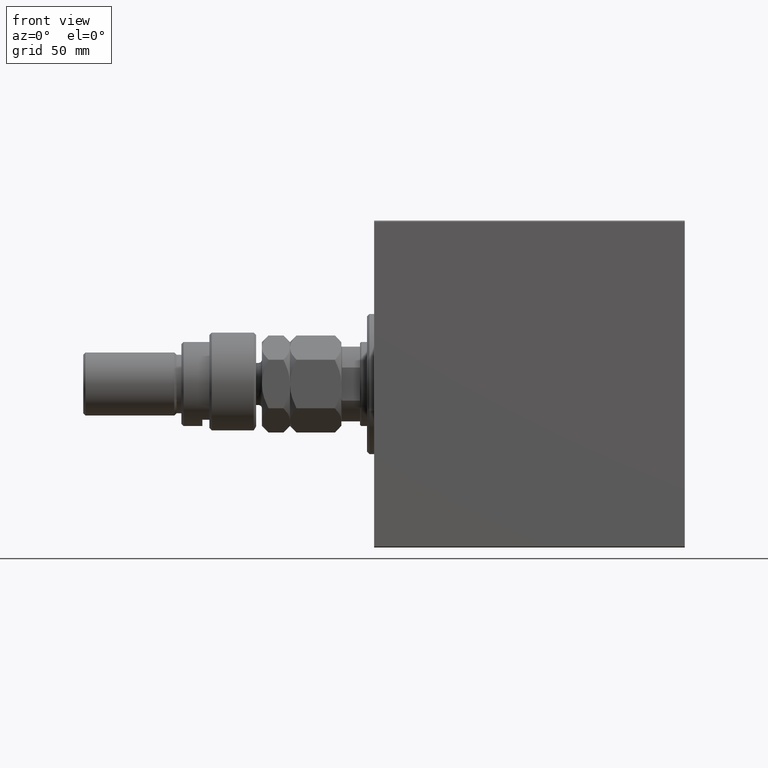
[diagram: clean part render]
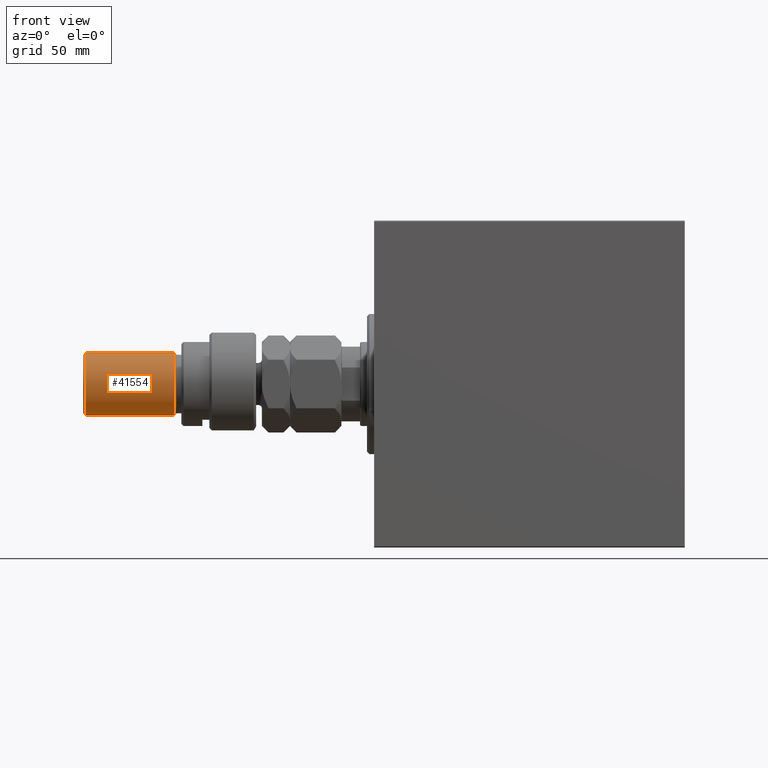
[diagram: same view with one face highlighted and labeled with its STEP entity id]
A machine part, front view. The second image highlights one B-rep face of the part: STEP entity #41554.
In plain terms, the highlighted cylindrical surface (edge-blend (fillet) strip) has radius 13.5 mm, axis along (1, -0, -0).
Its self-contained STEP definition (entity closure, byte-faithful):
#65 = CARTESIAN_POINT ( 'NONE',  ( -13.50000000000000000, 0.000000000000000000, 74.00000000000001421 ) ) ;
#109 = CARTESIAN_POINT ( 'NONE',  ( 13.50000000000000000, 1.653273178848926867E-15, 34.99999999999999289 ) ) ;
#2446 = EDGE_CURVE ( 'NONE', #43110, #24185, #46487, .T. ) ;
#2873 = EDGE_CURVE ( 'NONE', #5854, #24185, #41643, .T. ) ;
#5180 = ORIENTED_EDGE ( 'NONE', *, *, #17062, .T. ) ;
#5744 = DIRECTION ( 'NONE',  ( -0.000000000000000000, -0.000000000000000000, -1.000000000000000000 ) ) ;
#5854 = VERTEX_POINT ( 'NONE', #23184 ) ;
#9721 = AXIS2_PLACEMENT_3D ( 'NONE', #24763, #31632, #46063 ) ;
#10467 = CIRCLE ( 'NONE', #9721, 13.50000000000000000 ) ;
#14440 = DIRECTION ( 'NONE',  ( -0.000000000000000000, -0.000000000000000000, -1.000000000000000000 ) ) ;
#15905 = FACE_OUTER_BOUND ( 'NONE', #16044, .T. ) ;
#16044 = EDGE_LOOP ( 'NONE', ( #41210, #24263, #5180, #38393 ) ) ;
#17062 = EDGE_CURVE ( 'NONE', #30349, #43110, #17758, .T. ) ;
#17708 = DIRECTION ( 'NONE',  ( -0.000000000000000000, -0.000000000000000000, 1.000000000000000000 ) ) ;
#17758 = LINE ( 'NONE', #65, #23984 ) ;
#18264 = CARTESIAN_POINT ( 'NONE',  ( -13.50000000000000000, 0.000000000000000000, 73.00000000000001421 ) ) ;
#22750 = DIRECTION ( 'NONE',  ( -0.000000000000000000, -0.000000000000000000, -1.000000000000000000 ) ) ;
#23184 = CARTESIAN_POINT ( 'NONE',  ( 13.50000000000000000, 1.653273178848926867E-15, 73.00000000000001421 ) ) ;
#23984 = VECTOR ( 'NONE', #14440, 1000.000000000000000 ) ;
#24185 = VERTEX_POINT ( 'NONE', #109 ) ;
#24263 = ORIENTED_EDGE ( 'NONE', *, *, #45613, .T. ) ;
#24763 = CARTESIAN_POINT ( 'NONE',  ( 0.000000000000000000, 0.000000000000000000, 73.00000000000001421 ) ) ;
#26763 = AXIS2_PLACEMENT_3D ( 'NONE', #30278, #22750, #30509 ) ;
#28543 = DIRECTION ( 'NONE',  ( 1.000000000000000000, 0.000000000000000000, 0.000000000000000000 ) ) ;
#30051 = CYLINDRICAL_SURFACE ( 'NONE', #26763, 13.50000000000000000 ) ;
#30278 = CARTESIAN_POINT ( 'NONE',  ( 0.000000000000000000, 0.000000000000000000, 74.00000000000001421 ) ) ;
#30349 = VERTEX_POINT ( 'NONE', #18264 ) ;
#30509 = DIRECTION ( 'NONE',  ( -1.000000000000000000, 0.000000000000000000, 0.000000000000000000 ) ) ;
#31632 = DIRECTION ( 'NONE',  ( 0.000000000000000000, 0.000000000000000000, -1.000000000000000000 ) ) ;
#35863 = CARTESIAN_POINT ( 'NONE',  ( -13.50000000000000000, 0.000000000000000000, 34.99999999999999289 ) ) ;
#36562 = CARTESIAN_POINT ( 'NONE',  ( 0.000000000000000000, 0.000000000000000000, 34.99999999999999289 ) ) ;
#36684 = VECTOR ( 'NONE', #5744, 1000.000000000000000 ) ;
#38068 = CARTESIAN_POINT ( 'NONE',  ( 13.50000000000000000, 1.653273178848926867E-15, 74.00000000000001421 ) ) ;
#38393 = ORIENTED_EDGE ( 'NONE', *, *, #2446, .T. ) ;
#41210 = ORIENTED_EDGE ( 'NONE', *, *, #2873, .F. ) ;
#41554 = ADVANCED_FACE ( 'NONE', ( #15905 ), #30051, .T. ) ;
#41643 = LINE ( 'NONE', #38068, #36684 ) ;
#43110 = VERTEX_POINT ( 'NONE', #35863 ) ;
#45613 = EDGE_CURVE ( 'NONE', #5854, #30349, #10467, .T. ) ;
#45737 = AXIS2_PLACEMENT_3D ( 'NONE', #36562, #17708, #28543 ) ;
#46063 = DIRECTION ( 'NONE',  ( 1.000000000000000000, 0.000000000000000000, 0.000000000000000000 ) ) ;
#46487 = CIRCLE ( 'NONE', #45737, 13.50000000000000000 ) ;